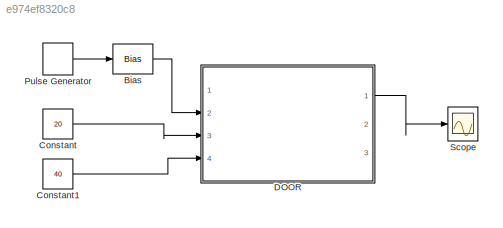
MODEL slx_e974ef8320c8
KIND model
CONFIG AbsTol = auto
CONFIG EnableMultiTasking = on
CONFIG FixedStep = 1e-3
CONFIG MaxStep = auto
CONFIG MinStep = auto
CONFIG RelTol = 1e-3
CONFIG SampleTimeConstraint = Unconstrained
CONFIG Solver = FixedStepAuto
CONFIG SolverName = FixedStepAuto
CONFIG StartTime = 0.0
CONFIG StopTime = 16
BLOCK [Bias] Bias
  Bias = 60
  SaturateOnIntegerOverflow = off
BLOCK [Constant] Constant
  Value = 20
BLOCK [Constant] Constant1
  Value = 40
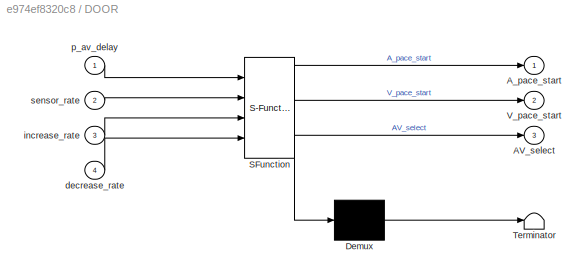
BLOCK [SubSystem] DOOR
  ErrorFcn = Stateflow.Translate.translate
  PermitHierarchicalResolution = ExplicitOnly
  Ports = [4, 3]
  RequestExecContextInheritance = off
  SFBlockType = Chart
  TreatAsAtomicUnit = on
BLOCK [Demux] DOOR/ Demux 
  Outputs = 1
  Ports = [1, 1]
BLOCK [S-Function] DOOR/ SFunction 
  EnableBusSupport = on
  FunctionName = sf_sfun
  PortCounts = [4 4]
  Ports = [4, 4]
  SFcnIsStateOwnerBlock = off
  SFunctionDeploymentMode = off
  Tag = Stateflow S-Function 3
BLOCK [Terminator] DOOR/ Terminator 
BLOCK [Outport] DOOR/AV_select
  Port = 3
BLOCK [Outport] DOOR/A_pace_start
BLOCK [Outport] DOOR/V_pace_start
  Port = 2
BLOCK [Inport] DOOR/decrease_rate
  Port = 4
BLOCK [Inport] DOOR/increase_rate
  Port = 3
BLOCK [Inport] DOOR/p_av_delay
BLOCK [Inport] DOOR/sensor_rate
  Port = 2
BLOCK [DiscretePulseGenerator] Pulse Generator
  Amplitude = 60
  Period = 16
  Ports = [0, 1]
  PulseType = Time based
  PulseWidth = 50
BLOCK [Scope] Scope
  Floating = off
  NumInputPorts = 1
  Ports = [1]
  ScopeSpecificationString = Simulink.scopes.TimeScopeBlockCfg('CurrentConfiguration', extmgr.ConfigurationSet(extmgr.Configuration('Core','General UI',true),extmgr.Configuration('Core','Source UI',true),extmgr.Configuration('Sources','WiredSimulink',true),extmgr.Configuration('Visuals','Time Domain',true,'SerializedDisplays',{struct('MinYLimReal','-0.125','MaxYLimReal','1.125','YLabelReal','','MinYLimMag','0.00000','MaxYLimM...<+1343ch>
LINE Bias:1 -> DOOR:2
LINE Constant1:1 -> DOOR:4
LINE Constant:1 -> DOOR:3
LINE DOOR:1 -> Scope:1
LINE Pulse Generator:1 -> Bias:1
CHART DOOR states=3 transitions=16
  STATE_LABEL 'INITIAL\nentry:\ncurrent_LRL = sensor_rate;'
  STATE_LABEL 'PACE_VENT\nentry:\nV_pace_start = true;\non after(1, msec):\nV_pace_start = false;\nAV_select = 0;\nexit:\nt = elapsed(sec)'
  STATE_LABEL 'PACE_ATR\nentry:\nA_pace_start = true;\non after(1,msec):\nA_pace_start = false;\nAV_select = 1;\nexit:\nt = t + elapsed(sec)'
CHART  states=0 transitions=0
